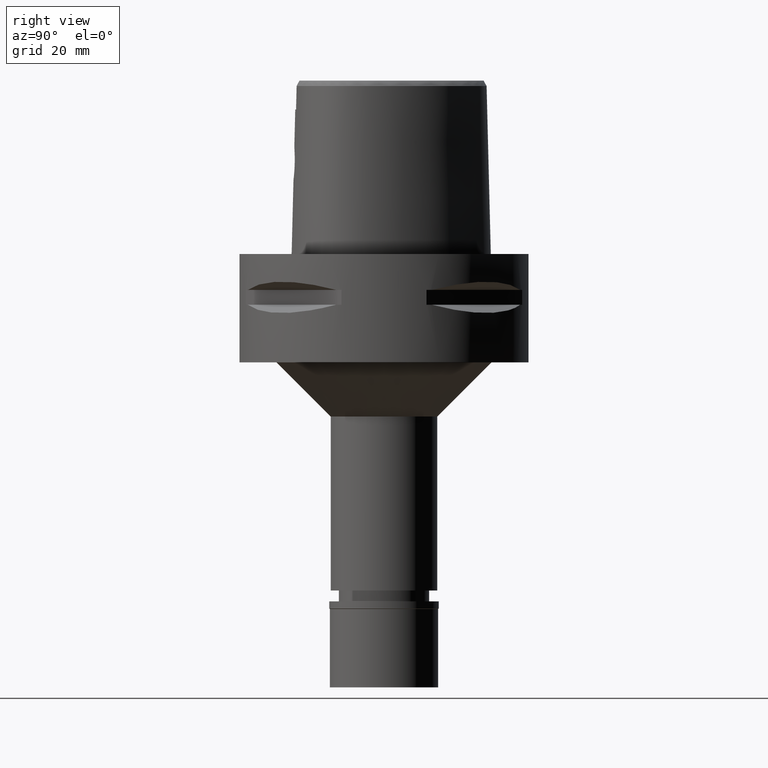
[diagram: clean part render]
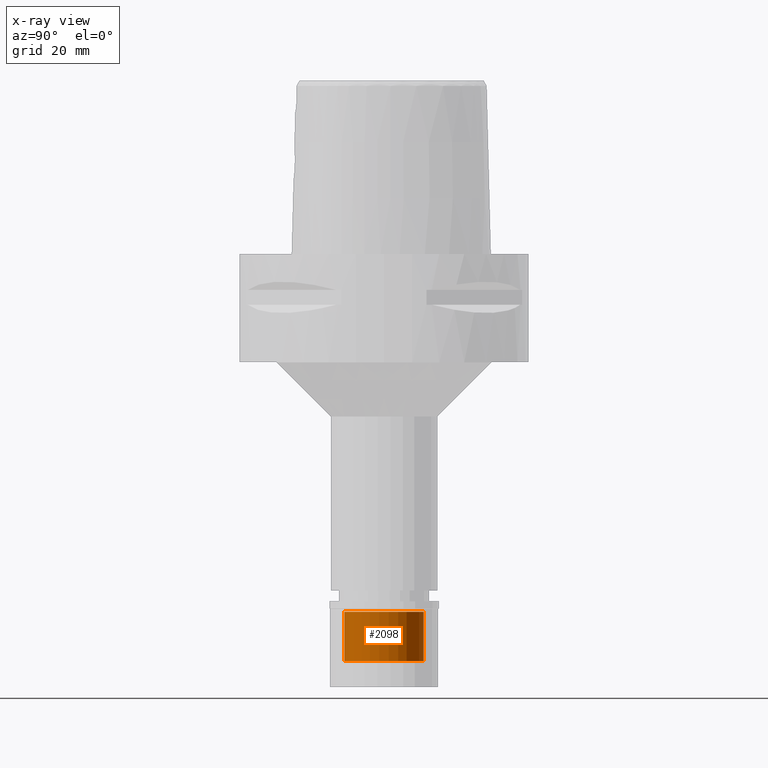
[diagram: x-ray — body ghosted, one internal face saturated and labeled with its STEP entity id]
A machine part, right view, then the same camera in x-ray: the body is ghosted and one INTERNAL B-rep face — a face not visible from any outside direction — is saturated and labeled: STEP entity #2098.
In plain terms, the highlighted cylindrical surface (partial cylindrical patch) has radius 11 mm, axis along (0, 0, -1).
Its self-contained STEP definition (entity closure, byte-faithful):
#68 = CIRCLE ( 'NONE', #389, 11.00000000000000000 ) ;
#253 = CARTESIAN_POINT ( 'NONE',  ( 0.0000000000000000000, 0.0000000000000000000, -2.899999999999999911 ) ) ;
#267 = ORIENTED_EDGE ( 'NONE', *, *, #649, .T. ) ;
#271 = DIRECTION ( 'NONE',  ( 0.0000000000000000000, -1.000000000000000000, 0.0000000000000000000 ) ) ;
#299 = CARTESIAN_POINT ( 'NONE',  ( 0.0000000000000000000, -11.00000000000000000, -2.899999999999999911 ) ) ;
#389 = AXIS2_PLACEMENT_3D ( 'NONE', #253, #3048, #2249 ) ;
#649 = EDGE_CURVE ( 'NONE', #3594, #4278, #2959, .T. ) ;
#680 = VECTOR ( 'NONE', #1039, 1000.000000000000000 ) ;
#826 = VERTEX_POINT ( 'NONE', #3449 ) ;
#1039 = DIRECTION ( 'NONE',  ( 0.0000000000000000000, 0.0000000000000000000, 1.000000000000000000 ) ) ;
#1066 = CARTESIAN_POINT ( 'NONE',  ( 0.0000000000000000000, -11.00000000000000000, -16.50000000000000000 ) ) ;
#1306 = EDGE_LOOP ( 'NONE', ( #3210, #267, #4658, #4536 ) ) ;
#1769 = LINE ( 'NONE', #4213, #5027 ) ;
#1851 = DIRECTION ( 'NONE',  ( 0.0000000000000000000, 0.0000000000000000000, -1.000000000000000000 ) ) ;
#2098 = ADVANCED_FACE ( 'NONE', ( #3395 ), #3065, .F. ) ;
#2249 = DIRECTION ( 'NONE',  ( 0.0000000000000000000, -1.000000000000000000, 0.0000000000000000000 ) ) ;
#2303 = VERTEX_POINT ( 'NONE', #2773 ) ;
#2465 = AXIS2_PLACEMENT_3D ( 'NONE', #2653, #4233, #271 ) ;
#2466 = CIRCLE ( 'NONE', #3786, 11.00000000000000000 ) ;
#2577 = EDGE_CURVE ( 'NONE', #4278, #2303, #68, .T. ) ;
#2653 = CARTESIAN_POINT ( 'NONE',  ( 0.0000000000000000000, 0.0000000000000000000, 0.0000000000000000000 ) ) ;
#2773 = CARTESIAN_POINT ( 'NONE',  ( 0.0000000000000000000, 11.00000000000000000, -2.899999999999999911 ) ) ;
#2959 = LINE ( 'NONE', #1066, #680 ) ;
#3048 = DIRECTION ( 'NONE',  ( 0.0000000000000000000, 0.0000000000000000000, 1.000000000000000000 ) ) ;
#3065 = CYLINDRICAL_SURFACE ( 'NONE', #2465, 11.00000000000000000 ) ;
#3210 = ORIENTED_EDGE ( 'NONE', *, *, #4919, .T. ) ;
#3395 = FACE_OUTER_BOUND ( 'NONE', #1306, .T. ) ;
#3449 = CARTESIAN_POINT ( 'NONE',  ( 0.0000000000000000000, 11.00000000000000000, -16.50000000000000000 ) ) ;
#3594 = VERTEX_POINT ( 'NONE', #4006 ) ;
#3786 = AXIS2_PLACEMENT_3D ( 'NONE', #3818, #1851, #4235 ) ;
#3818 = CARTESIAN_POINT ( 'NONE',  ( 0.0000000000000000000, 0.0000000000000000000, -16.50000000000000000 ) ) ;
#4006 = CARTESIAN_POINT ( 'NONE',  ( 0.0000000000000000000, -11.00000000000000000, -16.50000000000000000 ) ) ;
#4213 = CARTESIAN_POINT ( 'NONE',  ( 0.0000000000000000000, 11.00000000000000000, -16.50000000000000000 ) ) ;
#4233 = DIRECTION ( 'NONE',  ( 0.0000000000000000000, 0.0000000000000000000, -1.000000000000000000 ) ) ;
#4235 = DIRECTION ( 'NONE',  ( 0.0000000000000000000, 1.000000000000000000, 0.0000000000000000000 ) ) ;
#4278 = VERTEX_POINT ( 'NONE', #299 ) ;
#4536 = ORIENTED_EDGE ( 'NONE', *, *, #4863, .F. ) ;
#4595 = DIRECTION ( 'NONE',  ( 0.0000000000000000000, 0.0000000000000000000, 1.000000000000000000 ) ) ;
#4658 = ORIENTED_EDGE ( 'NONE', *, *, #2577, .T. ) ;
#4863 = EDGE_CURVE ( 'NONE', #826, #2303, #1769, .T. ) ;
#4919 = EDGE_CURVE ( 'NONE', #826, #3594, #2466, .T. ) ;
#5027 = VECTOR ( 'NONE', #4595, 1000.000000000000000 ) ;